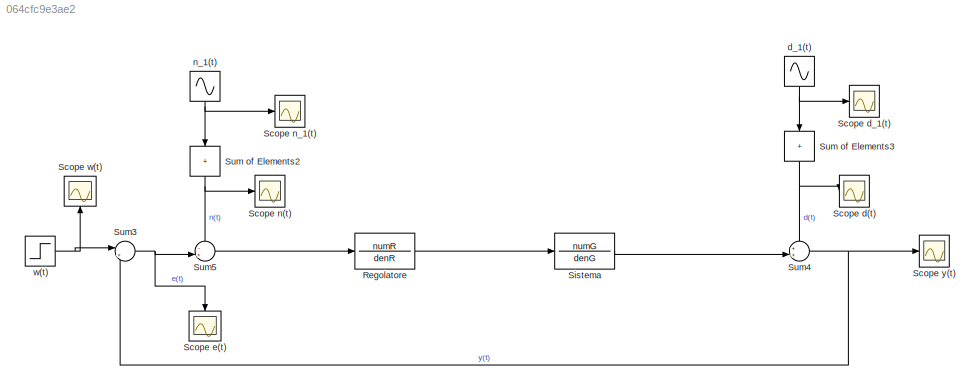
MODEL slx_064cfc9e3ae2
KIND model
CONFIG AbsTol = auto
CONFIG EnableMultiTasking = off
CONFIG FixedStep = auto
CONFIG MaxStep = auto
CONFIG MinStep = auto
CONFIG RelTol = 1e-3
CONFIG SampleTimeConstraint = Unconstrained
CONFIG SolverName = VariableStepAuto
CONFIG StartTime = 0.0
CONFIG StopTime = 10
BLOCK [TransferFcn] Regolatore
  Denominator = denR
  Numerator = numR
BLOCK [Scope] Scope d(t)
  Floating = off
  NumInputPorts = 1
  ScopeSpecificationString = Simulink.scopes.TimeScopeBlockCfg('CurrentConfiguration', extmgr.ConfigurationSet(extmgr.Configuration('Core','General UI',true),extmgr.Configuration('Core','Source UI',true),extmgr.Configuration('Sources','WiredSimulink',true,'DataLoggingVariableName','ScopeData4'),extmgr.Configuration('Visuals','Time Domain',true,'SerializedDisplays',{struct('MinYLimReal','-0.08437','MaxYLimReal','0.75935','YLab...<+1394ch>
BLOCK [Scope] Scope d_1(t)
  Floating = off
  NumInputPorts = 1
  ScopeSpecificationString = Simulink.scopes.TimeScopeBlockCfg('CurrentConfiguration', extmgr.ConfigurationSet(extmgr.Configuration('Core','General UI',true),extmgr.Configuration('Core','Source UI',true),extmgr.Configuration('Sources','WiredSimulink',true,'DataLoggingVariableName','ScopeData2'),extmgr.Configuration('Visuals','Time Domain',true,'SerializedDisplays',{struct('MinYLimReal','-0.03156','MaxYLimReal','0.284','YLabel...<+1392ch>
BLOCK [Scope] Scope e(t)
  Floating = off
  NameLocation = left
  NumInputPorts = 1
  ScopeSpecificationString = Simulink.scopes.TimeScopeBlockCfg('CurrentConfiguration', extmgr.ConfigurationSet(extmgr.Configuration('Core','General UI',true),extmgr.Configuration('Core','Source UI',true),extmgr.Configuration('Sources','WiredSimulink',true,'DataLoggingVariableName','ScopeData1'),extmgr.Configuration('Visuals','Time Domain',true,'SerializedDisplays',{struct('MinYLimReal','-2.24953','MaxYLimReal','0.24531','YLab...<+1392ch>
BLOCK [Scope] Scope n(t)
  Floating = off
  NumInputPorts = 1
  ScopeSpecificationString = Simulink.scopes.TimeScopeBlockCfg('CurrentConfiguration', extmgr.ConfigurationSet(extmgr.Configuration('Core','General UI',true),extmgr.Configuration('Core','Source UI',true),extmgr.Configuration('Sources','WiredSimulink',true,'SampleTime','0.0001'),extmgr.Configuration('Visuals','Time Domain',true,'SerializedDisplays',{struct('MinYLimReal','-0.8081','MaxYLimReal','0.8081','YLabelReal','','MinYLim...<+1504ch>
BLOCK [Scope] Scope n_1(t)
  Floating = off
  NumInputPorts = 1
  ScopeSpecificationString = Simulink.scopes.TimeScopeBlockCfg('CurrentConfiguration', extmgr.ConfigurationSet(extmgr.Configuration('Core','General UI',true),extmgr.Configuration('Core','Source UI',true),extmgr.Configuration('Sources','WiredSimulink',true,'DataLoggingVariableName','ScopeData3','SampleTime','0.0001'),extmgr.Configuration('Visuals','Time Domain',true,'SerializedDisplays',{struct('MinYLimReal','-0.24998','MaxYLi...<+1504ch>
BLOCK [Scope] Scope w(t)
  Floating = off
  NameLocation = right
  NumInputPorts = 1
  ScopeSpecificationString = Simulink.scopes.TimeScopeBlockCfg('CurrentConfiguration', extmgr.ConfigurationSet(extmgr.Configuration('Core','General UI',true),extmgr.Configuration('Core','Source UI',true),extmgr.Configuration('Sources','WiredSimulink',true,'DataLoggingVariableName','ScopeData2'),extmgr.Configuration('Visuals','Time Domain',true,'SerializedDisplays',{struct('MinYLimReal','-3.00000','MaxYLimReal','-1.00000','YLa...<+1391ch>
BLOCK [Scope] Scope y(t)
  Floating = off
  NumInputPorts = 1
  ScopeSpecificationString = Simulink.scopes.TimeScopeBlockCfg('CurrentConfiguration', extmgr.ConfigurationSet(extmgr.Configuration('Core','General UI',true),extmgr.Configuration('Core','Source UI',true),extmgr.Configuration('Sources','WiredSimulink',true,'DataLoggingVariableName','ScopeData6','SampleTime','0.01'),extmgr.Configuration('Visuals','Time Domain',true,'SerializedDisplays',{struct('MinYLimReal','-2.2453','MaxYLimRe...<+1476ch>
BLOCK [TransferFcn] Sistema
  Denominator = denG
  Numerator = numG
BLOCK [Sum] Sum of Elements2
  CollapseDim = 4
  IconShape = rectangular
  Inputs = +
  NameLocation = left
BLOCK [Sum] Sum of Elements3
  CollapseDim = 4
  IconShape = rectangular
  Inputs = +
  NameLocation = left
BLOCK [Sum] Sum3
  Inputs = |+-
BLOCK [Sum] Sum4
  Inputs = ++|
BLOCK [Sum] Sum5
  Inputs = -+|
BLOCK [Sin] d_1(t)
  Amplitude = DD_ampiezza
  Frequency = DD_frequenza*x
  NameLocation = left
  SampleTime = 0
BLOCK [Sin] n_1(t)
  Amplitude = NN_ampiezza
  Frequency = NN_frequenza*x
  NameLocation = left
  SampleTime = 0
BLOCK [Step] w(t)
  After = WW_check
  SampleTime = 0
  Time = 0
LINE Regolatore:1 -> Sistema:1
LINE Sistema:1 -> Sum4:2
NET Sum of Elements2:1 -> Scope n(t):1, Sum5:1
NET Sum of Elements3:1 -> Scope d(t):1, Sum4:1
NET Sum3:1 -> Scope e(t):1, Sum5:2
NET Sum4:1 -> Scope y(t):1, Sum3:2
LINE Sum5:1 -> Regolatore:1
NET d_1(t):1 -> Scope d_1(t):1, Sum of Elements3:1
NET n_1(t):1 -> Scope n_1(t):1, Sum of Elements2:1
NET w(t):1 -> Scope w(t):1, Sum3:1
note: NET lines group one-source signal fan-out (src -> all destinations, sorted); 1:1 wires keep LINE
